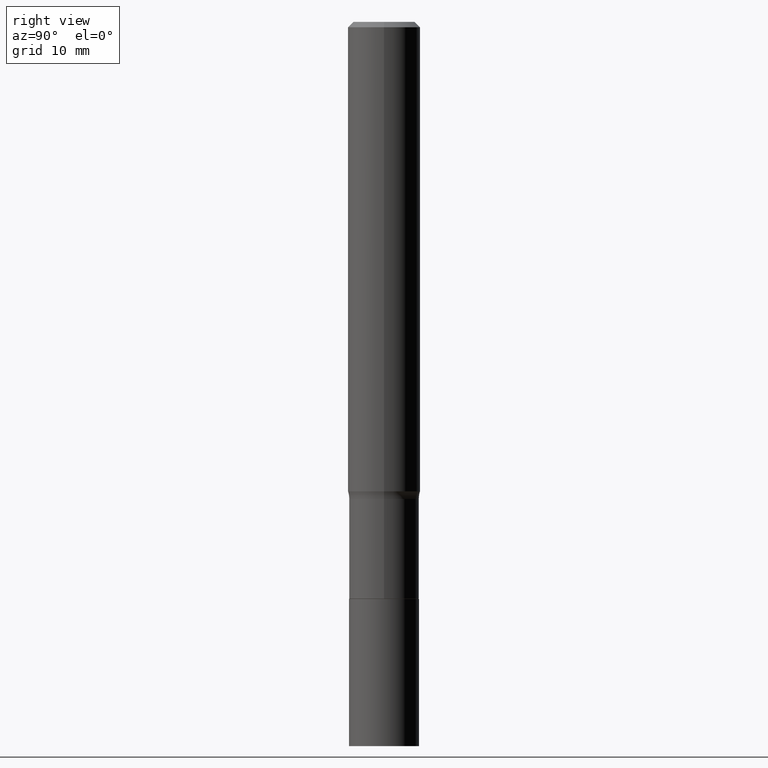
[diagram: clean part render]
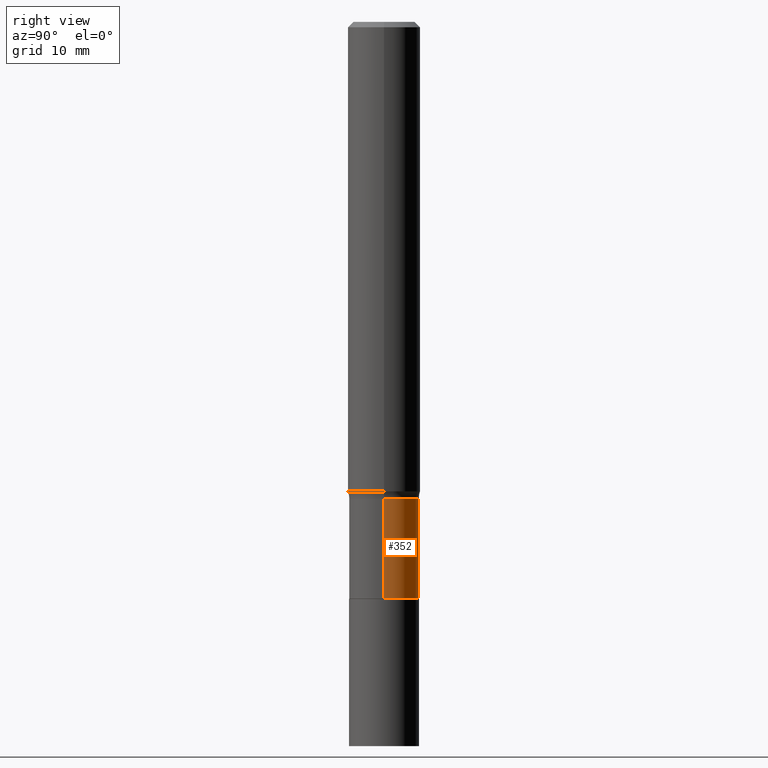
[diagram: same view with one face highlighted and labeled with its STEP entity id]
A machine part, right view. The second image highlights one B-rep face of the part: STEP entity #352.
In plain terms, the highlighted cylindrical surface (edge-blend (fillet) strip) has radius 2.8994 mm, axis along (-0, 0, 1).
Its self-contained STEP definition (entity closure, byte-faithful):
#23 = CARTESIAN_POINT ( 'NONE',  ( -0.1141499999999999737, 8.110845328701541754E-16, -5.614964405525973971E-30 ) ) ;
#41 = CARTESIAN_POINT ( 'NONE',  ( -0.1141499999999999598, -5.190248166400388062E-15, -1.556000000000000272 ) ) ;
#47 = ORIENTED_EDGE ( 'NONE', *, *, #436, .F. ) ;
#59 = CARTESIAN_POINT ( 'NONE',  ( 3.805149462424072876E-29, -5.432744963239936043E-15, -1.556000000000000272 ) ) ;
#73 = DIRECTION ( 'NONE',  ( 1.000000000000000000, -6.982962677686266711E-15, 4.876176775795935793E-29 ) ) ;
#79 = VERTEX_POINT ( 'NONE', #417 ) ;
#80 = EDGE_CURVE ( 'NONE', #438, #375, #85, .T. ) ;
#85 = LINE ( 'NONE', #23, #274 ) ;
#91 = DIRECTION ( 'NONE',  ( -2.445468806185136877E-29, 3.491481338843145188E-15, 1.000000000000000000 ) ) ;
#93 = EDGE_CURVE ( 'NONE', #96, #375, #106, .T. ) ;
#96 = VERTEX_POINT ( 'NONE', #265 ) ;
#97 = AXIS2_PLACEMENT_3D ( 'NONE', #167, #207, #73 ) ;
#104 = DIRECTION ( 'NONE',  ( -2.445468806185136597E-29, 3.491481338843145583E-15, 1.000000000000000000 ) ) ;
#106 = CIRCLE ( 'NONE', #159, 0.1141499999999999598 ) ;
#146 = ORIENTED_EDGE ( 'NONE', *, *, #93, .F. ) ;
#159 = AXIS2_PLACEMENT_3D ( 'NONE', #59, #201, #387 ) ;
#160 = CARTESIAN_POINT ( 'NONE',  ( 0.1141499999999999737, -7.971051896578871257E-16, 5.566155789571059486E-30 ) ) ;
#164 = FACE_OUTER_BOUND ( 'NONE', #372, .T. ) ;
#167 = CARTESIAN_POINT ( 'NONE',  ( 0.000000000000000000, 0.000000000000000000, 0.000000000000000000 ) ) ;
#197 = LINE ( 'NONE', #160, #325 ) ;
#201 = DIRECTION ( 'NONE',  ( -2.445468806185136597E-29, 3.491481338843145583E-15, 1.000000000000000000 ) ) ;
#207 = DIRECTION ( 'NONE',  ( -2.445468806185136597E-29, 3.491481338843145583E-15, 1.000000000000000000 ) ) ;
#215 = CIRCLE ( 'NONE', #243, 0.1141500000000000015 ) ;
#224 = CARTESIAN_POINT ( 'NONE',  ( -0.1141500000000000015, -5.190248166400388062E-15, -1.881700000000000372 ) ) ;
#243 = AXIS2_PLACEMENT_3D ( 'NONE', #390, #104, #279 ) ;
#265 = CARTESIAN_POINT ( 'NONE',  ( 0.1141499999999999598, -6.229850152897822971E-15, -1.556000000000000272 ) ) ;
#269 = ORIENTED_EDGE ( 'NONE', *, *, #80, .T. ) ;
#274 = VECTOR ( 'NONE', #91, 39.37007874015748143 ) ;
#279 = DIRECTION ( 'NONE',  ( 1.000000000000000000, -6.982962677686264344E-15, 0.000000000000000000 ) ) ;
#291 = EDGE_CURVE ( 'NONE', #79, #438, #215, .T. ) ;
#309 = DIRECTION ( 'NONE',  ( -2.445468806185136877E-29, 3.491481338843145188E-15, 1.000000000000000000 ) ) ;
#325 = VECTOR ( 'NONE', #309, 39.37007874015748143 ) ;
#346 = ORIENTED_EDGE ( 'NONE', *, *, #291, .T. ) ;
#352 = ADVANCED_FACE ( 'NONE', ( #164 ), #468, .T. ) ;
#372 = EDGE_LOOP ( 'NONE', ( #346, #269, #146, #47 ) ) ;
#375 = VERTEX_POINT ( 'NONE', #41 ) ;
#387 = DIRECTION ( 'NONE',  ( 1.000000000000000000, -6.982962677686267499E-15, 0.000000000000000000 ) ) ;
#390 = CARTESIAN_POINT ( 'NONE',  ( 4.601638652598572305E-29, -6.569920435301148433E-15, -1.881700000000000372 ) ) ;
#417 = CARTESIAN_POINT ( 'NONE',  ( 0.1141500000000000015, -7.367025624959035361E-15, -1.881700000000000372 ) ) ;
#436 = EDGE_CURVE ( 'NONE', #79, #96, #197, .T. ) ;
#438 = VERTEX_POINT ( 'NONE', #224 ) ;
#468 = CYLINDRICAL_SURFACE ( 'NONE', #97, 0.1141499999999999737 ) ;